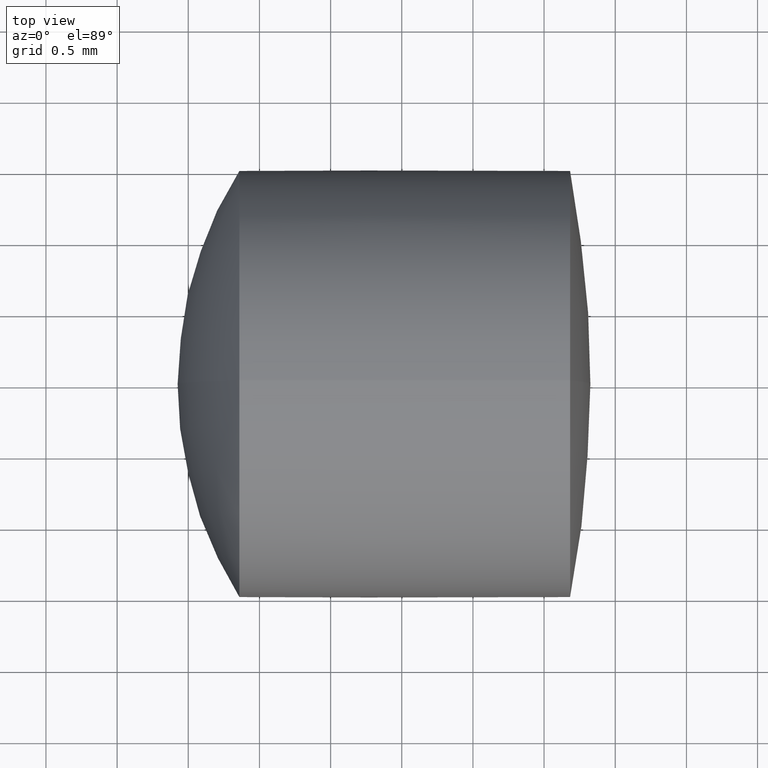
[diagram: clean part render]
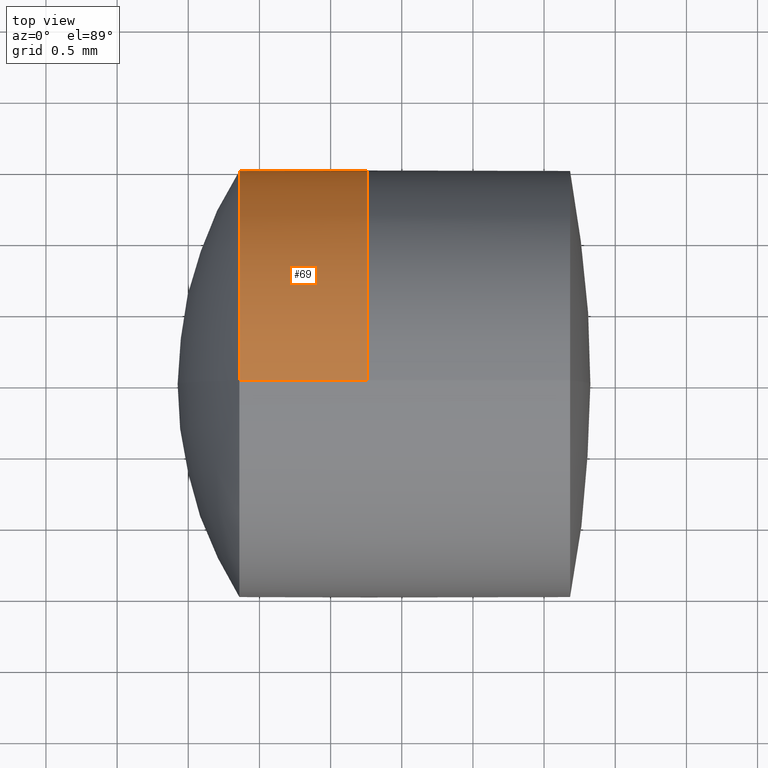
[diagram: same view with one face highlighted and labeled with its STEP entity id]
A machine part, top view. The second image highlights one B-rep face of the part: STEP entity #69.
In plain terms, the highlighted cylindrical surface (partial cylindrical patch) has radius 1.5 mm, axis along (-1, -0, -0).
Its self-contained STEP definition (entity closure, byte-faithful):
#1 = DIRECTION ( 'NONE',  ( -1.000000000000000000, -0.0000000000000000000, -0.0000000000000000000 ) ) ;
#17 = ORIENTED_EDGE ( 'NONE', *, *, #205, .F. ) ;
#43 = VECTOR ( 'NONE', #213, 1000.000000000000000 ) ;
#49 = CYLINDRICAL_SURFACE ( 'NONE', #133, 1.500000000000000000 ) ;
#63 = VECTOR ( 'NONE', #104, 1000.000000000000000 ) ;
#69 = ADVANCED_FACE ( 'NONE', ( #195 ), #49, .T. ) ;
#73 = DIRECTION ( 'NONE',  ( -1.000000000000000000, -0.0000000000000000000, -0.0000000000000000000 ) ) ;
#83 = AXIS2_PLACEMENT_3D ( 'NONE', #264, #73, #235 ) ;
#101 = LINE ( 'NONE', #266, #43 ) ;
#104 = DIRECTION ( 'NONE',  ( -1.000000000000000000, -0.0000000000000000000, -0.0000000000000000000 ) ) ;
#114 = ORIENTED_EDGE ( 'NONE', *, *, #154, .F. ) ;
#115 = CIRCLE ( 'NONE', #315, 1.500000000000000000 ) ;
#118 = DIRECTION ( 'NONE',  ( 0.0000000000000000000, 0.0000000000000000000, 1.000000000000000000 ) ) ;
#123 = LINE ( 'NONE', #289, #63 ) ;
#130 = VERTEX_POINT ( 'NONE', #166 ) ;
#133 = AXIS2_PLACEMENT_3D ( 'NONE', #336, #220, #118 ) ;
#154 = EDGE_CURVE ( 'NONE', #256, #130, #101, .T. ) ;
#163 = DIRECTION ( 'NONE',  ( 0.0000000000000000000, 0.0000000000000000000, 1.000000000000000000 ) ) ;
#166 = CARTESIAN_POINT ( 'NONE',  ( 0.3590600832153031400, 0.0000000000000000000, 1.500000000000000200 ) ) ;
#176 = EDGE_CURVE ( 'NONE', #256, #291, #115, .T. ) ;
#177 = ORIENTED_EDGE ( 'NONE', *, *, #218, .T. ) ;
#179 = EDGE_LOOP ( 'NONE', ( #206, #177, #17, #114 ) ) ;
#190 = CARTESIAN_POINT ( 'NONE',  ( 1.256612268473861000, 0.0000000000000000000, 0.0000000000000000000 ) ) ;
#191 = VERTEX_POINT ( 'NONE', #265 ) ;
#195 = FACE_OUTER_BOUND ( 'NONE', #179, .T. ) ;
#205 = EDGE_CURVE ( 'NONE', #130, #191, #340, .T. ) ;
#206 = ORIENTED_EDGE ( 'NONE', *, *, #176, .T. ) ;
#208 = CARTESIAN_POINT ( 'NONE',  ( 1.256612268473861000, 0.0000000000000000000, 1.500000000000000000 ) ) ;
#213 = DIRECTION ( 'NONE',  ( -1.000000000000000000, -0.0000000000000000000, -0.0000000000000000000 ) ) ;
#218 = EDGE_CURVE ( 'NONE', #291, #191, #123, .T. ) ;
#220 = DIRECTION ( 'NONE',  ( -1.000000000000000000, -0.0000000000000000000, -0.0000000000000000000 ) ) ;
#235 = DIRECTION ( 'NONE',  ( 0.0000000000000000000, 0.0000000000000000000, 1.000000000000000000 ) ) ;
#256 = VERTEX_POINT ( 'NONE', #208 ) ;
#264 = CARTESIAN_POINT ( 'NONE',  ( 0.3590600832153031400, 0.0000000000000000000, 0.0000000000000000000 ) ) ;
#265 = CARTESIAN_POINT ( 'NONE',  ( 0.3590600832153031400, 1.836970198721030200E-016, -1.500000000000000200 ) ) ;
#266 = CARTESIAN_POINT ( 'NONE',  ( -0.8160621761658039000, 0.0000000000000000000, 1.500000000000000000 ) ) ;
#275 = CARTESIAN_POINT ( 'NONE',  ( 1.256612268473861000, 1.836970198721029900E-016, -1.500000000000000000 ) ) ;
#289 = CARTESIAN_POINT ( 'NONE',  ( -0.8160621761658039000, 1.836970198721029900E-016, -1.500000000000000000 ) ) ;
#291 = VERTEX_POINT ( 'NONE', #275 ) ;
#315 = AXIS2_PLACEMENT_3D ( 'NONE', #190, #1, #163 ) ;
#336 = CARTESIAN_POINT ( 'NONE',  ( -0.8160621761658039000, 0.0000000000000000000, 0.0000000000000000000 ) ) ;
#340 = CIRCLE ( 'NONE', #83, 1.500000000000000000 ) ;